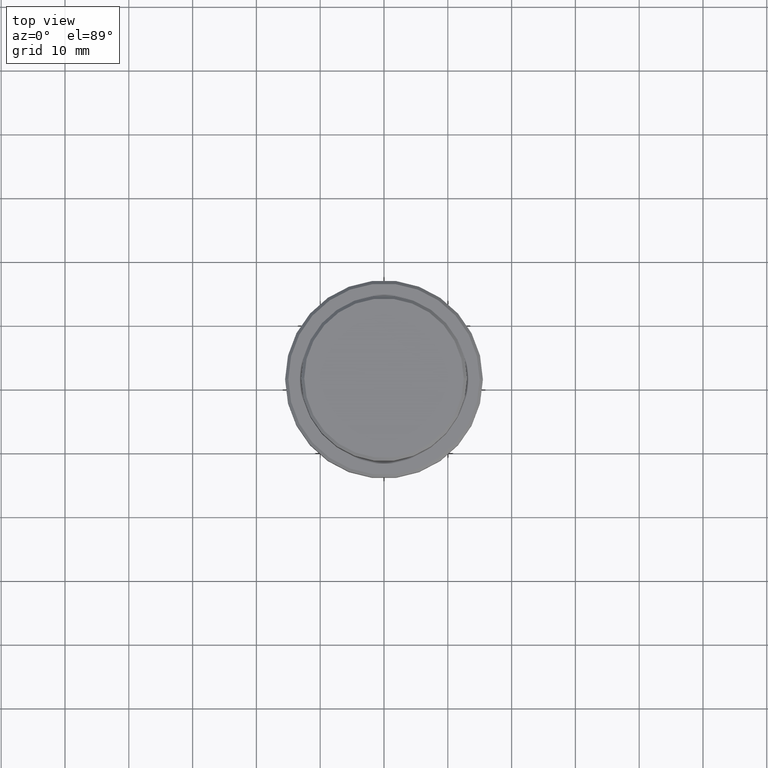
[diagram: clean part render]
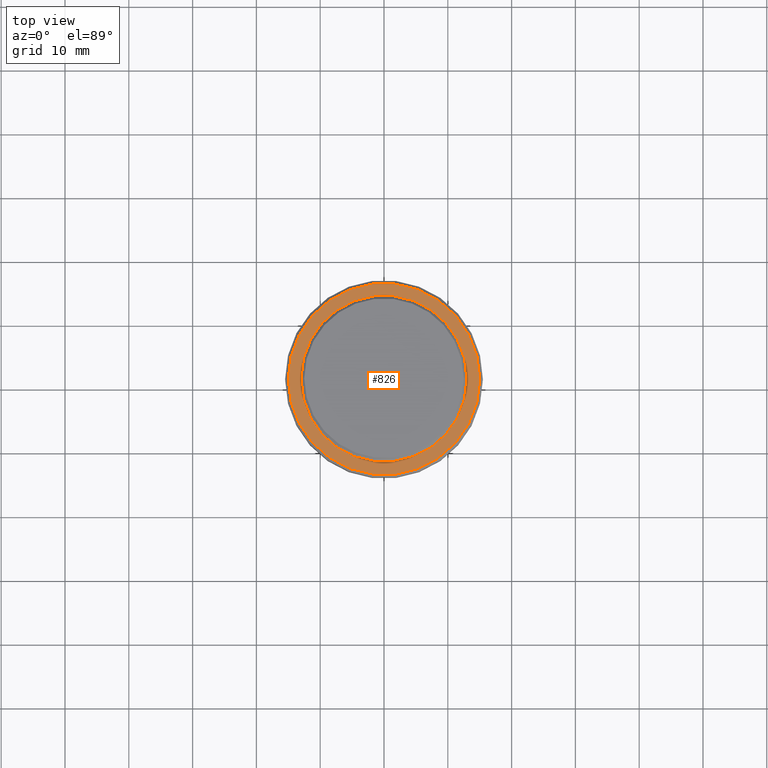
[diagram: same view with one face highlighted and labeled with its STEP entity id]
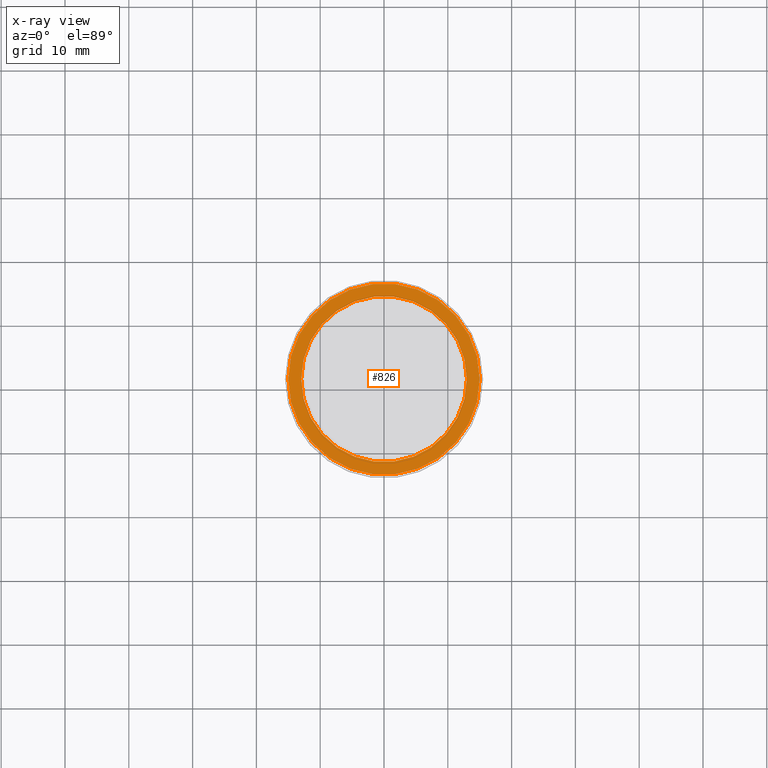
[diagram: x-ray of the same camera — body ghosted, the highlighted face saturated]
A machine part, top view. The second image highlights one B-rep face of the part: STEP entity #826.
The next image is the same camera in x-ray: the body ghosted, the highlighted face saturated — about 0% of this face is hidden behind the body in this view.
In plain terms, the highlighted planar face has unit normal (0, -0, 1).
Its self-contained STEP definition (entity closure, byte-faithful):
#34 = AXIS2_PLACEMENT_3D ( 'NONE', #1146, #397, #509 ) ;
#63 = CARTESIAN_POINT ( 'NONE',  ( 0.000000000000000000, 0.000000000000000000, -9.000000000000001776 ) ) ;
#135 = DIRECTION ( 'NONE',  ( 1.000000000000000000, 0.000000000000000000, 0.000000000000000000 ) ) ;
#147 = VERTEX_POINT ( 'NONE', #349 ) ;
#195 = DIRECTION ( 'NONE',  ( 1.000000000000000000, 0.000000000000000000, 0.000000000000000000 ) ) ;
#202 = AXIS2_PLACEMENT_3D ( 'NONE', #394, #907, #1143 ) ;
#210 = EDGE_CURVE ( 'NONE', #445, #565, #1245, .T. ) ;
#242 = AXIS2_PLACEMENT_3D ( 'NONE', #1170, #327, #195 ) ;
#244 = EDGE_LOOP ( 'NONE', ( #1392, #1370 ) ) ;
#315 = ORIENTED_EDGE ( 'NONE', *, *, #1228, .T. ) ;
#327 = DIRECTION ( 'NONE',  ( -0.000000000000000000, -0.000000000000000000, 1.000000000000000000 ) ) ;
#349 = CARTESIAN_POINT ( 'NONE',  ( -14.99999999999995737, 0.000000000000000000, -9.000000000000001776 ) ) ;
#370 = EDGE_CURVE ( 'NONE', #147, #628, #771, .T. ) ;
#394 = CARTESIAN_POINT ( 'NONE',  ( 0.000000000000000000, 0.000000000000000000, -9.000000000000001776 ) ) ;
#397 = DIRECTION ( 'NONE',  ( 0.000000000000000000, -0.000000000000000000, 1.000000000000000000 ) ) ;
#404 = CIRCLE ( 'NONE', #577, 12.99999999999999467 ) ;
#445 = VERTEX_POINT ( 'NONE', #1206 ) ;
#509 = DIRECTION ( 'NONE',  ( 1.000000000000000000, 0.000000000000000000, 0.000000000000000000 ) ) ;
#565 = VERTEX_POINT ( 'NONE', #1244 ) ;
#577 = AXIS2_PLACEMENT_3D ( 'NONE', #63, #1229, #135 ) ;
#594 = ORIENTED_EDGE ( 'NONE', *, *, #370, .T. ) ;
#628 = VERTEX_POINT ( 'NONE', #1285 ) ;
#702 = FACE_BOUND ( 'NONE', #244, .T. ) ;
#763 = DIRECTION ( 'NONE',  ( 1.000000000000000000, 0.000000000000000000, 0.000000000000000000 ) ) ;
#771 = CIRCLE ( 'NONE', #242, 14.99999999999995737 ) ;
#777 = EDGE_CURVE ( 'NONE', #565, #445, #404, .T. ) ;
#826 = ADVANCED_FACE ( 'NONE', ( #879, #702 ), #1064, .T. ) ;
#879 = FACE_OUTER_BOUND ( 'NONE', #1016, .T. ) ;
#901 = CARTESIAN_POINT ( 'NONE',  ( 0.000000000000000000, 0.000000000000000000, -9.000000000000001776 ) ) ;
#907 = DIRECTION ( 'NONE',  ( -0.000000000000000000, -0.000000000000000000, 1.000000000000000000 ) ) ;
#991 = DIRECTION ( 'NONE',  ( 0.000000000000000000, 0.000000000000000000, -1.000000000000000000 ) ) ;
#1016 = EDGE_LOOP ( 'NONE', ( #594, #315 ) ) ;
#1034 = AXIS2_PLACEMENT_3D ( 'NONE', #901, #991, #763 ) ;
#1064 = PLANE ( 'NONE',  #34 ) ;
#1143 = DIRECTION ( 'NONE',  ( 1.000000000000000000, 0.000000000000000000, 0.000000000000000000 ) ) ;
#1146 = CARTESIAN_POINT ( 'NONE',  ( 0.000000000000000000, 12.49999999999999289, -9.000000000000001776 ) ) ;
#1170 = CARTESIAN_POINT ( 'NONE',  ( 0.000000000000000000, 0.000000000000000000, -9.000000000000001776 ) ) ;
#1206 = CARTESIAN_POINT ( 'NONE',  ( -12.99999999999999467, 1.592040838891558504E-15, -9.000000000000001776 ) ) ;
#1228 = EDGE_CURVE ( 'NONE', #628, #147, #1387, .T. ) ;
#1229 = DIRECTION ( 'NONE',  ( 0.000000000000000000, 0.000000000000000000, -1.000000000000000000 ) ) ;
#1244 = CARTESIAN_POINT ( 'NONE',  ( 12.99999999999999467, 0.000000000000000000, -9.000000000000001776 ) ) ;
#1245 = CIRCLE ( 'NONE', #1034, 12.99999999999999467 ) ;
#1285 = CARTESIAN_POINT ( 'NONE',  ( 14.99999999999995737, 1.867586368699711009E-15, -9.000000000000001776 ) ) ;
#1370 = ORIENTED_EDGE ( 'NONE', *, *, #210, .T. ) ;
#1387 = CIRCLE ( 'NONE', #202, 14.99999999999995737 ) ;
#1392 = ORIENTED_EDGE ( 'NONE', *, *, #777, .T. ) ;